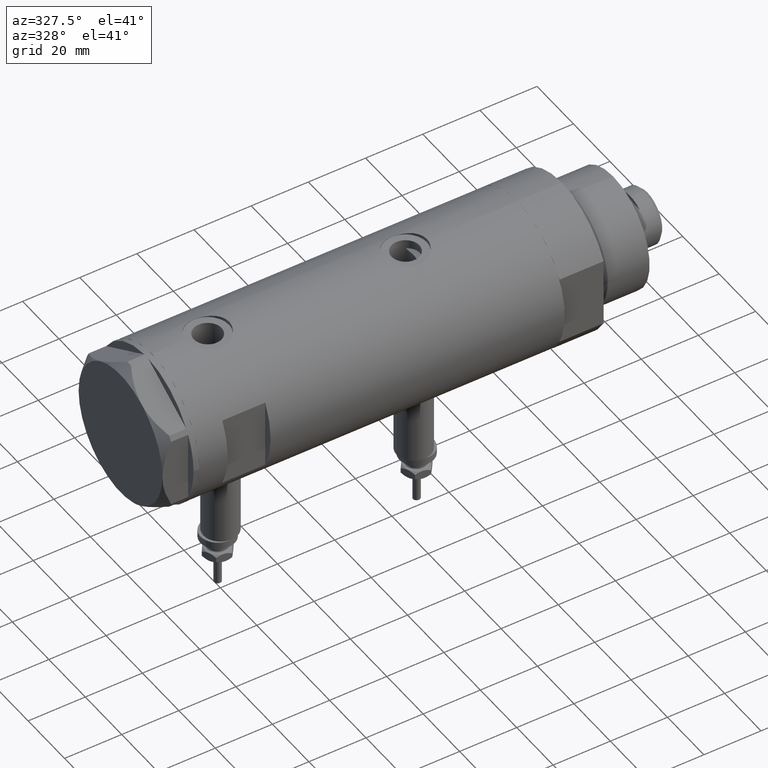
[diagram: clean part render]
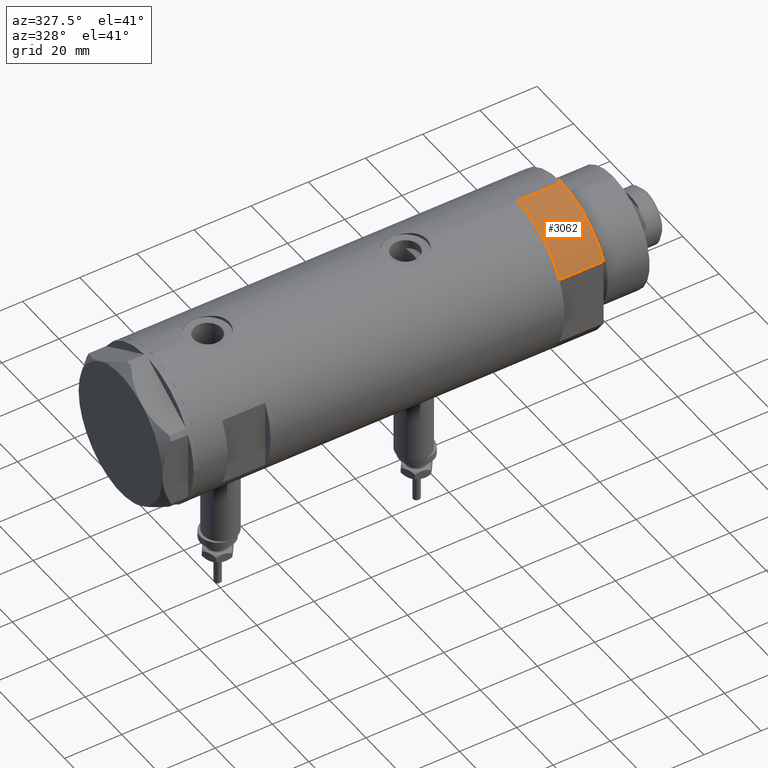
[diagram: same view with one face highlighted and labeled with its STEP entity id]
A machine part, auxiliary view. The second image highlights one B-rep face of the part: STEP entity #3062.
In plain terms, the highlighted cylindrical surface (partial cylindrical patch) has radius 26 mm, axis along (-1, -0, 0).
Its self-contained STEP definition (entity closure, byte-faithful):
#371 = CARTESIAN_POINT ( 'NONE',  ( 0.000000000000000000, 0.000000000000000000, 15.50000000000000000 ) ) ;
#481 = VERTEX_POINT ( 'NONE', #3566 ) ;
#527 = EDGE_CURVE ( 'NONE', #5802, #1591, #4042, .T. ) ;
#825 = DIRECTION ( 'NONE',  ( 1.000000000000000000, 0.000000000000000000, 0.000000000000000000 ) ) ;
#868 = ORIENTED_EDGE ( 'NONE', *, *, #527, .T. ) ;
#918 = CARTESIAN_POINT ( 'NONE',  ( -26.00000000000000355, 0.000000000000000000, 0.000000000000000000 ) ) ;
#946 = VECTOR ( 'NONE', #3170, 1000.000000000000000 ) ;
#1233 = ORIENTED_EDGE ( 'NONE', *, *, #4965, .F. ) ;
#1235 = LINE ( 'NONE', #5937, #946 ) ;
#1397 = DIRECTION ( 'NONE',  ( 1.000000000000000000, 0.000000000000000000, 0.000000000000000000 ) ) ;
#1591 = VERTEX_POINT ( 'NONE', #4505 ) ;
#2181 = AXIS2_PLACEMENT_3D ( 'NONE', #3804, #2333, #1397 ) ;
#2333 = DIRECTION ( 'NONE',  ( 0.000000000000000000, 0.000000000000000000, 1.000000000000000000 ) ) ;
#2365 = DIRECTION ( 'NONE',  ( -0.000000000000000000, -0.000000000000000000, -1.000000000000000000 ) ) ;
#2677 = CARTESIAN_POINT ( 'NONE',  ( -12.12435565298215145, -22.99999999999999645, 0.000000000000000000 ) ) ;
#3062 = ADVANCED_FACE ( 'NONE', ( #3709 ), #4788, .T. ) ;
#3170 = DIRECTION ( 'NONE',  ( -0.000000000000000000, -0.000000000000000000, -1.000000000000000000 ) ) ;
#3411 = VERTEX_POINT ( 'NONE', #918 ) ;
#3526 = ORIENTED_EDGE ( 'NONE', *, *, #3715, .T. ) ;
#3544 = VECTOR ( 'NONE', #6084, 1000.000000000000000 ) ;
#3566 = CARTESIAN_POINT ( 'NONE',  ( -26.00000000000000355, 0.000000000000000000, 15.50000000000000000 ) ) ;
#3709 = FACE_OUTER_BOUND ( 'NONE', #5792, .T. ) ;
#3715 = EDGE_CURVE ( 'NONE', #3411, #5802, #4621, .T. ) ;
#3804 = CARTESIAN_POINT ( 'NONE',  ( 0.000000000000000000, 0.000000000000000000, 0.000000000000000000 ) ) ;
#3998 = DIRECTION ( 'NONE',  ( 0.000000000000000000, 0.000000000000000000, 1.000000000000000000 ) ) ;
#4042 = LINE ( 'NONE', #2677, #3544 ) ;
#4306 = DIRECTION ( 'NONE',  ( -1.000000000000000000, 0.000000000000000000, 0.000000000000000000 ) ) ;
#4410 = EDGE_CURVE ( 'NONE', #481, #3411, #1235, .T. ) ;
#4479 = CARTESIAN_POINT ( 'NONE',  ( 0.000000000000000000, 0.000000000000000000, 15.50000000000000000 ) ) ;
#4505 = CARTESIAN_POINT ( 'NONE',  ( -12.12435565298215323, -22.99999999999999645, 15.50000000000000000 ) ) ;
#4507 = AXIS2_PLACEMENT_3D ( 'NONE', #4479, #3998, #825 ) ;
#4621 = CIRCLE ( 'NONE', #2181, 26.00000000000000355 ) ;
#4788 = CYLINDRICAL_SURFACE ( 'NONE', #4905, 26.00000000000000355 ) ;
#4881 = ORIENTED_EDGE ( 'NONE', *, *, #4410, .T. ) ;
#4905 = AXIS2_PLACEMENT_3D ( 'NONE', #371, #2365, #4306 ) ;
#4965 = EDGE_CURVE ( 'NONE', #481, #1591, #6258, .T. ) ;
#4995 = CARTESIAN_POINT ( 'NONE',  ( -12.12435565298215501, -22.99999999999999645, 0.000000000000000000 ) ) ;
#5792 = EDGE_LOOP ( 'NONE', ( #1233, #4881, #3526, #868 ) ) ;
#5802 = VERTEX_POINT ( 'NONE', #4995 ) ;
#5937 = CARTESIAN_POINT ( 'NONE',  ( -26.00000000000000355, 0.000000000000000000, 15.50000000000000000 ) ) ;
#6084 = DIRECTION ( 'NONE',  ( -0.000000000000000000, -0.000000000000000000, 1.000000000000000000 ) ) ;
#6258 = CIRCLE ( 'NONE', #4507, 26.00000000000000355 ) ;